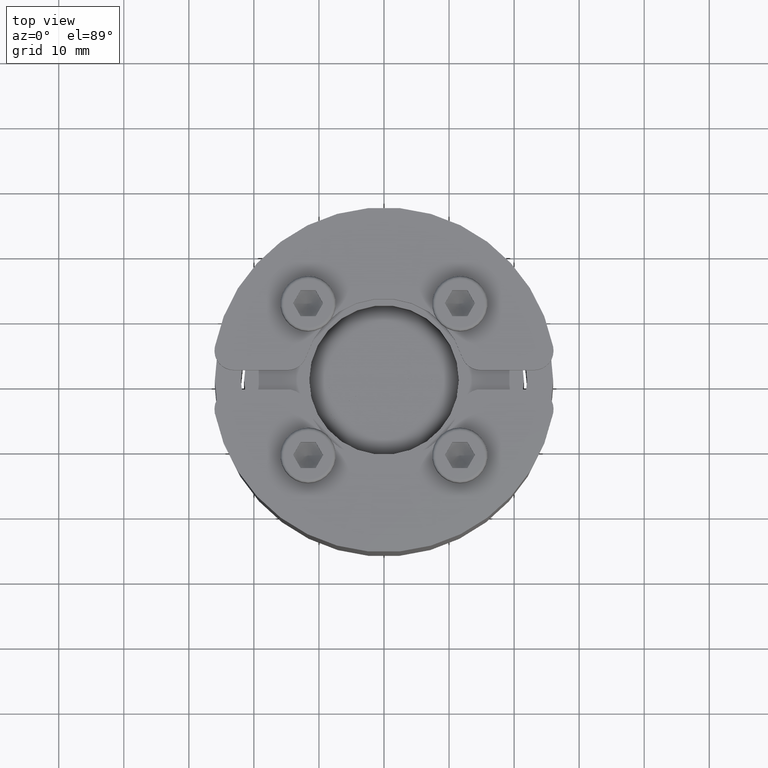
[diagram: clean part render]
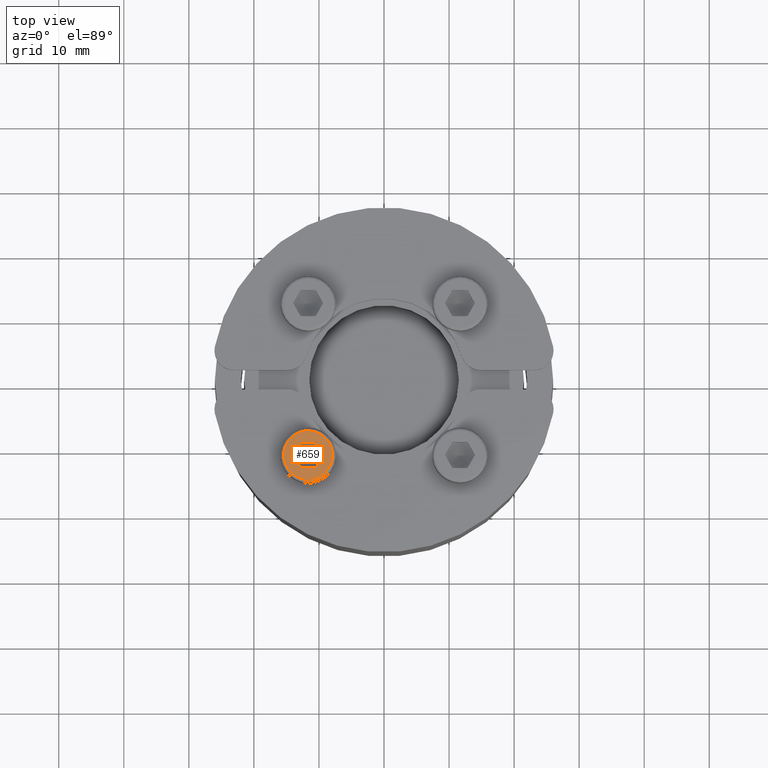
[diagram: same view with one face highlighted and labeled with its STEP entity id]
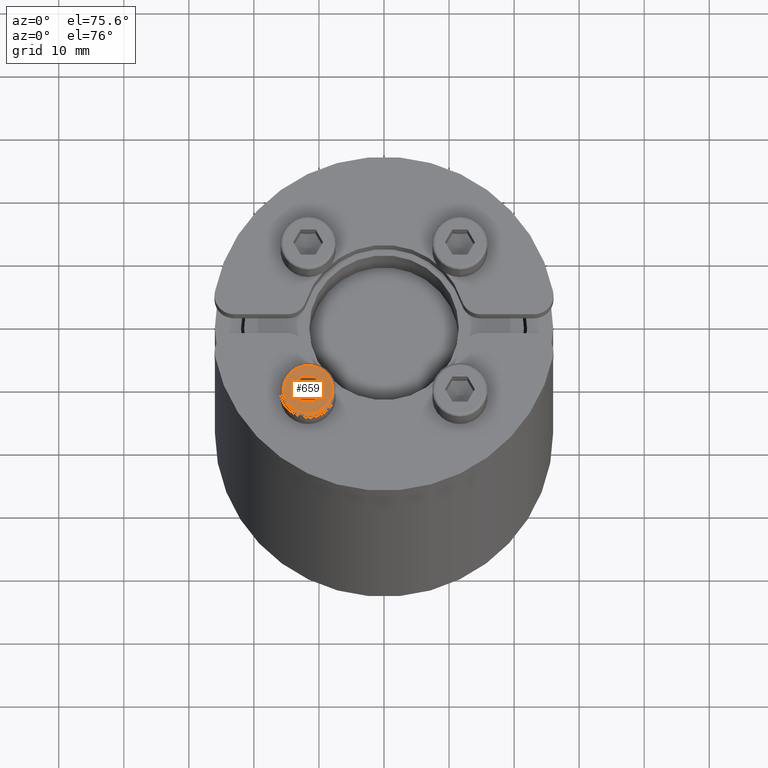
[diagram: same view with one face highlighted and labeled with its STEP entity id]
A machine part, top view. The second image highlights one B-rep face of the part: STEP entity #659.
A second angle (auxiliary view) of the same face is appended — the face is thin or edge-on in the first view.
In plain terms, the highlighted planar face has unit normal (0, 0, 1).
Its self-contained STEP definition (entity closure, byte-faithful):
#578=CARTESIAN_POINT('',(-4.999999999999996,3.750000000000002,0.0));
#579=VERTEX_POINT('',#578);
#580=CARTESIAN_POINT('',(-4.999999999999996,-1.294981E-016,0.0));
#581=DIRECTION('',(1.0,0.0,0.0));
#582=DIRECTION('',(0.0,-1.0,0.0));
#583=AXIS2_PLACEMENT_3D('',#580,#581,#582);
#584=CIRCLE('',#583,3.750000000000002);
#585=EDGE_CURVE('',#579,#579,#584,.T.);
#601=CARTESIAN_POINT('',(-4.999999999999996,3.279700538379252,0.0));
#602=DIRECTION('',(-1.0,0.0,0.0));
#603=DIRECTION('',(0.0,0.0,1.0));
#604=AXIS2_PLACEMENT_3D('',#601,#602,#603);
#605=PLANE('',#604);
#606=ORIENTED_EDGE('',*,*,#585,.F.);
#607=EDGE_LOOP('',(#606));
#608=FACE_OUTER_BOUND('',#607,.T.);
#609=CARTESIAN_POINT('',(-4.999999999999996,2.0,-1.154700538379253));
#610=VERTEX_POINT('',#609);
#611=CARTESIAN_POINT('',(-4.999999999999996,2.000000000000002,1.15470053837925));
#612=VERTEX_POINT('',#611);
#613=CARTESIAN_POINT('',(-4.999999999999996,2.0,-1.154700538379253));
#614=DIRECTION('',(0.0,0.0,1.0));
#615=VECTOR('',#614,2.309401076758503);
#616=LINE('',#613,#615);
#617=EDGE_CURVE('',#610,#612,#616,.T.);
#618=ORIENTED_EDGE('',*,*,#617,.T.);
#619=CARTESIAN_POINT('',(-4.999999999999996,1.533219E-016,2.309401076758503));
#620=VERTEX_POINT('',#619);
#621=CARTESIAN_POINT('',(-4.999999999999996,2.000000000000003,1.15470053837925));
#622=DIRECTION('',(0.0,-0.866025403784438,0.5));
#623=VECTOR('',#622,2.309401076758507);
#624=LINE('',#621,#623);
#625=EDGE_CURVE('',#612,#620,#624,.T.);
#626=ORIENTED_EDGE('',*,*,#625,.T.);
#627=CARTESIAN_POINT('',(-4.999999999999996,-2.0,1.154700538379252));
#628=VERTEX_POINT('',#627);
#629=CARTESIAN_POINT('',(-4.999999999999996,2.220446E-016,2.309401076758504));
#630=DIRECTION('',(0.0,-0.866025403784439,-0.5));
#631=VECTOR('',#630,2.309401076758504);
#632=LINE('',#629,#631);
#633=EDGE_CURVE('',#620,#628,#632,.T.);
#634=ORIENTED_EDGE('',*,*,#633,.T.);
#635=CARTESIAN_POINT('',(-4.999999999999996,-2.000000000000001,-1.154700538379251));
#636=VERTEX_POINT('',#635);
#637=CARTESIAN_POINT('',(-4.999999999999996,-2.000000000000001,1.154700538379252));
#638=DIRECTION('',(0.0,0.0,-1.0));
#639=VECTOR('',#638,2.309401076758503);
#640=LINE('',#637,#639);
#641=EDGE_CURVE('',#628,#636,#640,.T.);
#642=ORIENTED_EDGE('',*,*,#641,.T.);
#643=CARTESIAN_POINT('',(-4.999999999999996,-4.080140E-016,-2.309401076758503));
#644=VERTEX_POINT('',#643);
#645=CARTESIAN_POINT('',(-4.999999999999996,-2.000000000000001,-1.154700538379252));
#646=DIRECTION('',(0.0,0.866025403784439,-0.5));
#647=VECTOR('',#646,2.309401076758504);
#648=LINE('',#645,#647);
#649=EDGE_CURVE('',#636,#644,#648,.T.);
#650=ORIENTED_EDGE('',*,*,#649,.T.);
#651=CARTESIAN_POINT('',(-4.999999999999996,-6.661338E-016,-2.309401076758503));
#652=DIRECTION('',(0.0,0.866025403784439,0.5));
#653=VECTOR('',#652,2.309401076758503);
#654=LINE('',#651,#653);
#655=EDGE_CURVE('',#644,#610,#654,.T.);
#656=ORIENTED_EDGE('',*,*,#655,.T.);
#657=EDGE_LOOP('',(#618,#626,#634,#642,#650,#656));
#658=FACE_BOUND('',#657,.T.);
#659=ADVANCED_FACE('',(#608,#658),#605,.T.);